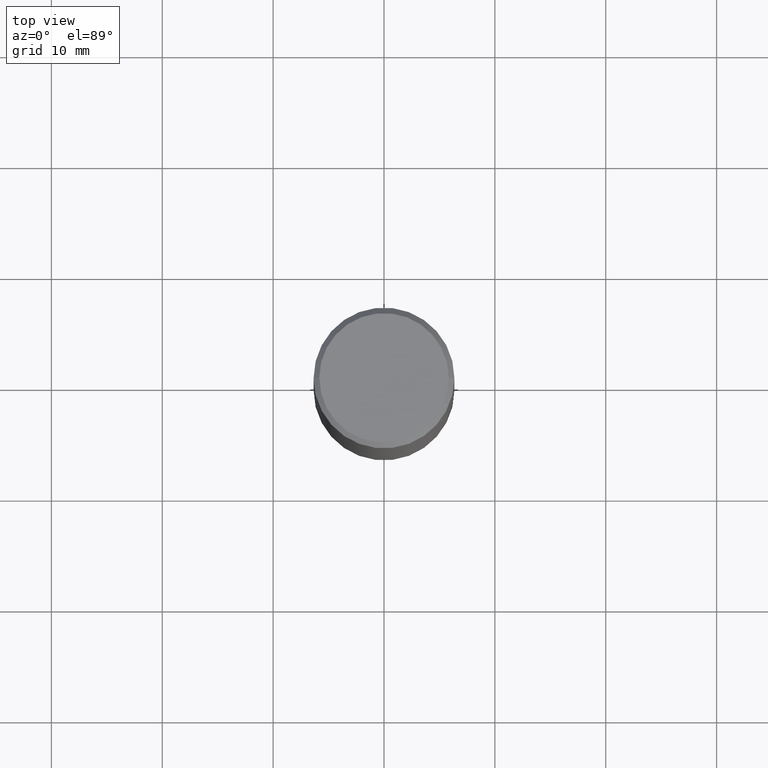
[diagram: clean part render]
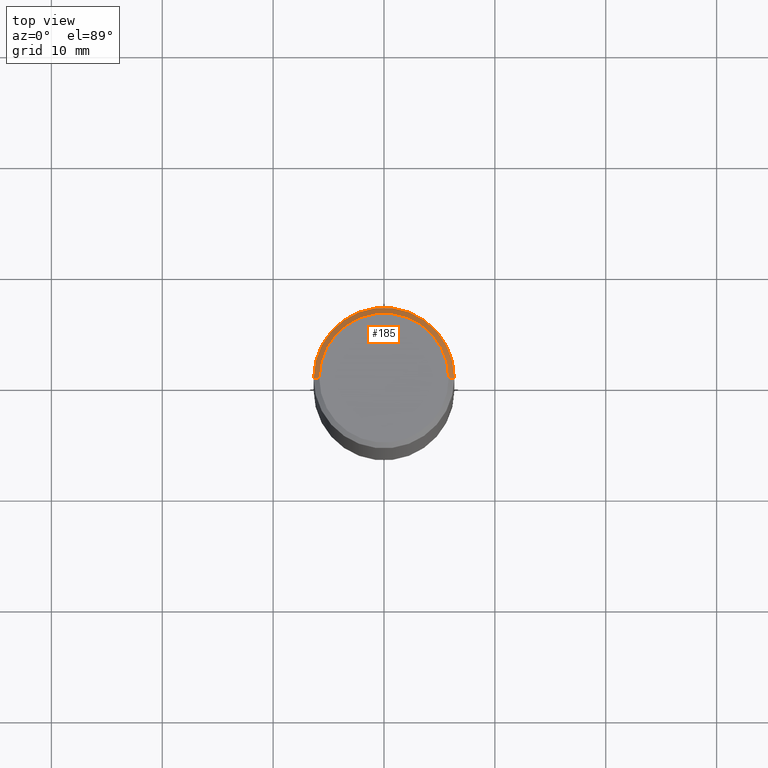
[diagram: same view with one face highlighted and labeled with its STEP entity id]
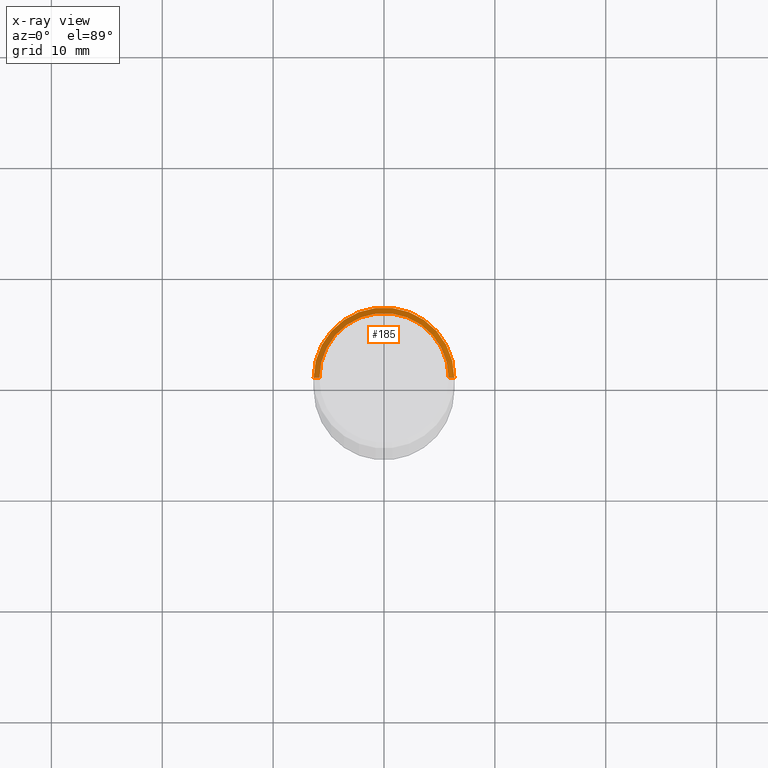
[diagram: x-ray of the same camera — body ghosted, the highlighted face saturated]
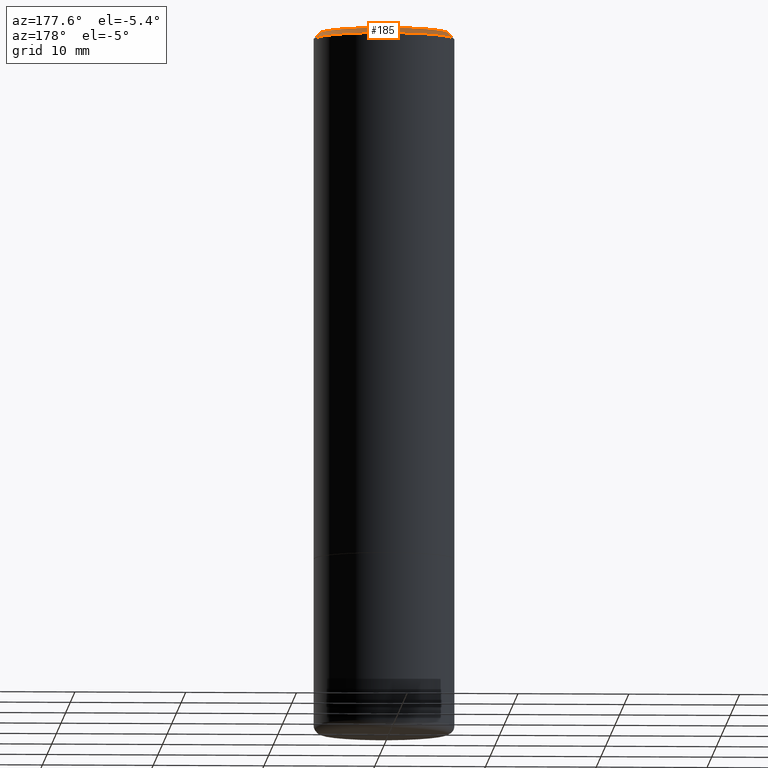
[diagram: same view with one face highlighted and labeled with its STEP entity id]
A machine part, top view. The second image highlights one B-rep face of the part: STEP entity #185.
The next image is the same camera in x-ray: the body ghosted, the highlighted face saturated — about 0% of this face is hidden behind the body in this view.
A second angle (auxiliary view) of the same face is appended — the face is thin or edge-on in the first view.
In plain terms, the highlighted conical surface has half-angle 45 deg.
Its self-contained STEP definition (entity closure, byte-faithful):
#3 = DIRECTION ( 'NONE',  ( -0.7071067811865466846, 2.468850131082247989E-15, -0.7071067811865483499 ) ) ;
#29 = ORIENTED_EDGE ( 'NONE', *, *, #439, .F. ) ;
#37 = VERTEX_POINT ( 'NONE', #420 ) ;
#45 = CARTESIAN_POINT ( 'NONE',  ( -1.043851414335219820E-46, 1.490343170380447200E-32, 4.268512490100411279E-18 ) ) ;
#49 = DIRECTION ( 'NONE',  ( 2.445468806185136597E-29, -3.491481338843145583E-15, -1.000000000000000000 ) ) ;
#64 = VERTEX_POINT ( 'NONE', #142 ) ;
#84 = EDGE_CURVE ( 'NONE', #37, #64, #194, .T. ) ;
#105 = AXIS2_PLACEMENT_3D ( 'NONE', #175, #49, #318 ) ;
#117 = LINE ( 'NONE', #440, #421 ) ;
#120 = AXIS2_PLACEMENT_3D ( 'NONE', #45, #353, #278 ) ;
#135 = VERTEX_POINT ( 'NONE', #358 ) ;
#142 = CARTESIAN_POINT ( 'NONE',  ( -0.2299999999999997324, 1.640996229256270744E-15, 4.268512490089056766E-18 ) ) ;
#162 = EDGE_CURVE ( 'NONE', #135, #308, #172, .T. ) ;
#164 = LINE ( 'NONE', #238, #315 ) ;
#172 = CIRCLE ( 'NONE', #257, 0.2499999999999997502 ) ;
#175 = CARTESIAN_POINT ( 'NONE',  ( 4.890937612370289799E-31, -6.982962677686315028E-17, -0.02000000000000006981 ) ) ;
#177 = DIRECTION ( 'NONE',  ( -2.445468806185136597E-29, 3.491481338843145583E-15, 1.000000000000000000 ) ) ;
#185 = ADVANCED_FACE ( 'NONE', ( #288 ), #233, .T. ) ;
#194 = CIRCLE ( 'NONE', #120, 0.2299999999999997324 ) ;
#199 = ORIENTED_EDGE ( 'NONE', *, *, #162, .T. ) ;
#222 = DIRECTION ( 'NONE',  ( 1.000000000000000000, -6.982962677686267499E-15, 0.000000000000000000 ) ) ;
#233 = CONICAL_SURFACE ( 'NONE', #105, 0.2499999999999997502, 0.7853981633974471688 ) ;
#238 = CARTESIAN_POINT ( 'NONE',  ( -0.2499999999999997502, 1.675911042644701999E-15, -0.02000000000000006981 ) ) ;
#257 = AXIS2_PLACEMENT_3D ( 'NONE', #279, #177, #222 ) ;
#269 = ORIENTED_EDGE ( 'NONE', *, *, #84, .F. ) ;
#278 = DIRECTION ( 'NONE',  ( 1.000000000000000000, -6.982962677686266711E-15, 4.876225828469314487E-29 ) ) ;
#279 = CARTESIAN_POINT ( 'NONE',  ( 4.890937612370289799E-31, -6.982962677686315028E-17, -0.02000000000000006981 ) ) ;
#288 = FACE_OUTER_BOUND ( 'NONE', #307, .T. ) ;
#307 = EDGE_LOOP ( 'NONE', ( #269, #374, #199, #29 ) ) ;
#308 = VERTEX_POINT ( 'NONE', #434 ) ;
#315 = VECTOR ( 'NONE', #3, 39.37007874015748143 ) ;
#318 = DIRECTION ( 'NONE',  ( -1.000000000000000000, 6.982962677686267499E-15, 0.000000000000000000 ) ) ;
#353 = DIRECTION ( 'NONE',  ( -2.445468806185136597E-29, 3.491481338843145583E-15, 1.000000000000000000 ) ) ;
#358 = CARTESIAN_POINT ( 'NONE',  ( 0.2499999999999997502, -1.784954126219744217E-15, -0.02000000000000006981 ) ) ;
#366 = DIRECTION ( 'NONE',  ( 0.7071067811865466846, -7.319954787623252890E-15, -0.7071067811865483499 ) ) ;
#374 = ORIENTED_EDGE ( 'NONE', *, *, #380, .T. ) ;
#380 = EDGE_CURVE ( 'NONE', #37, #135, #117, .T. ) ;
#420 = CARTESIAN_POINT ( 'NONE',  ( 0.2299999999999997324, -1.681434332853597236E-15, 4.268512490111905999E-18 ) ) ;
#421 = VECTOR ( 'NONE', #366, 39.37007874015748143 ) ;
#434 = CARTESIAN_POINT ( 'NONE',  ( -0.2499999999999997502, 1.675911042644701999E-15, -0.02000000000000006981 ) ) ;
#439 = EDGE_CURVE ( 'NONE', #64, #308, #164, .T. ) ;
#440 = CARTESIAN_POINT ( 'NONE',  ( 0.2499999999999997502, -1.784954126219744217E-15, -0.02000000000000006981 ) ) ;